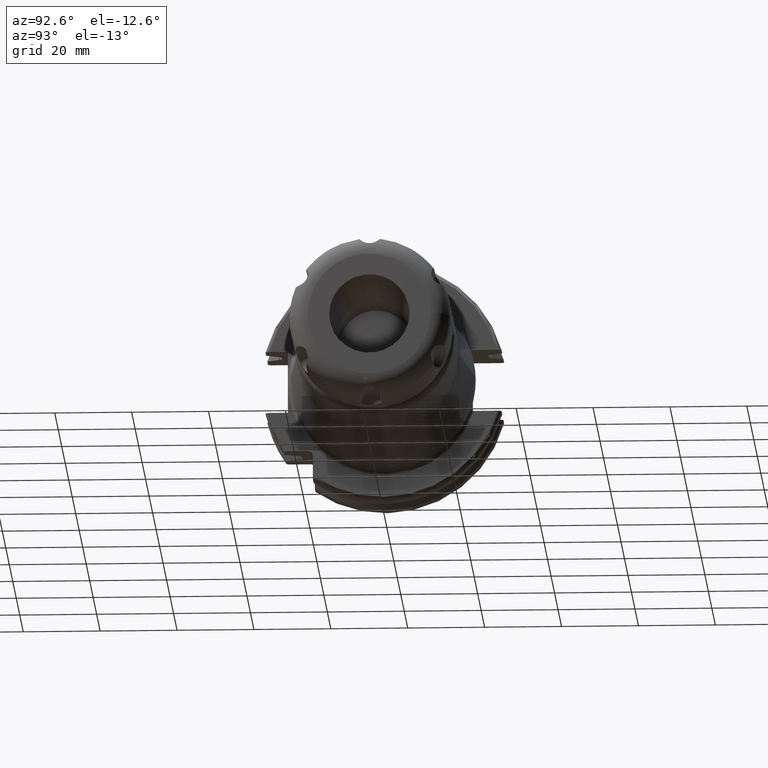
[diagram: clean part render]
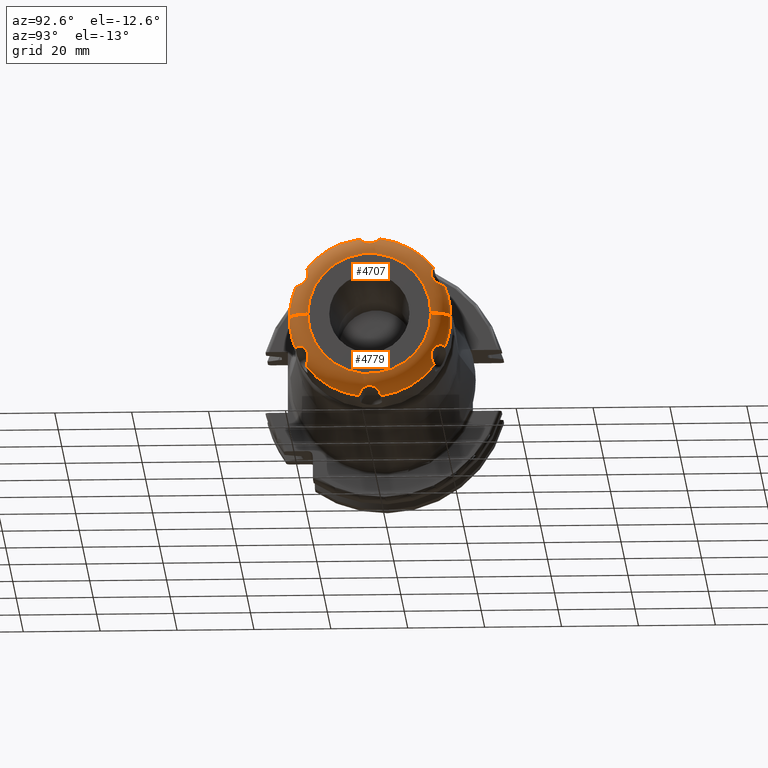
[diagram: same view with one multi-face feature highlighted, each face labeled with its STEP entity id]
A machine part, auxiliary view. The highlighted faces form ONE feature: a constant-radius fillet chain: 2 tangent blend faces with common blend radius 5 mm. The faces share edges in the B-rep.
Their STEP definitions:
[1] entity #4779 (Torus):
#3533=CARTESIAN_POINT('',(1.5E1,1.6E1,0.E0));
#3534=DIRECTION('',(0.E0,0.E0,1.E0));
#3535=DIRECTION('',(1.E0,0.E0,0.E0));
#3536=AXIS2_PLACEMENT_3D('',#3533,#3534,#3535);
#3543=CARTESIAN_POINT('',(1.5E1,-1.6E1,0.E0));
#3544=DIRECTION('',(0.E0,0.E0,-1.E0));
#3545=DIRECTION('',(1.E0,0.E0,0.E0));
#3546=AXIS2_PLACEMENT_3D('',#3543,#3544,#3545);
#3636=CARTESIAN_POINT('',(2.E1,0.E0,0.E0));
#3637=DIRECTION('',(-1.E0,0.E0,0.E0));
#3638=DIRECTION('',(0.E0,1.E0,0.E0));
#3639=AXIS2_PLACEMENT_3D('',#3636,#3637,#3638);
#3641=CARTESIAN_POINT('',(1.5E1,-1.941540806421E1,-8.002620177191E0));
#3642=CARTESIAN_POINT('',(1.542321788724E1,-1.941540806421E1,
-8.002620177191E0));
#3643=CARTESIAN_POINT('',(1.620468152628E1,-1.930999578457E1,
-7.985798708923E0));
#3644=CARTESIAN_POINT('',(1.721216543948E1,-1.891211228604E1,
-7.963908016479E0));
#3645=CARTESIAN_POINT('',(1.796822291460E1,-1.837532731217E1,
-8.023046071665E0));
#3646=CARTESIAN_POINT('',(1.849784635995E1,-1.778663981505E1,
-8.211665502208E0));
#3647=CARTESIAN_POINT('',(1.881976242400E1,-1.724541419782E1,
-8.521814281589E0));
#3648=CARTESIAN_POINT('',(1.899817580767E1,-1.677374639527E1,
-8.940592729759E0));
#3649=CARTESIAN_POINT('',(1.905655290145E1,-1.639010770448E1,
-9.464436485259E0));
#3650=CARTESIAN_POINT('',(1.899770832641E1,-1.612877605656E1,
-1.005882740558E1));
#3651=CARTESIAN_POINT('',(1.881839493085E1,-1.600243396825E1,
-1.067763722815E1));
#3652=CARTESIAN_POINT('',(1.849569164869E1,-1.600523142875E1,
-1.130092212088E1));
#3653=CARTESIAN_POINT('',(1.796584599530E1,-1.613652703256E1,
-1.190397537455E1));
#3654=CARTESIAN_POINT('',(1.720946165293E1,-1.635368824691E1,
-1.239758272599E1));
#3655=CARTESIAN_POINT('',(1.620346445674E1,-1.657102422938E1,
-1.273016788831E1));
#3656=CARTESIAN_POINT('',(1.542276979207E1,-1.663817640239E1,
-1.281292651985E1));
#3657=CARTESIAN_POINT('',(1.5E1,-1.663817640239E1,-1.281292651985E1));
#3667=CARTESIAN_POINT('',(1.5E1,0.E0,0.E0));
#3668=DIRECTION('',(-1.E0,0.E0,0.E0));
#3669=DIRECTION('',(0.E0,-1.322491267532E-1,-9.912165093828E-1));
#3670=AXIS2_PLACEMENT_3D('',#3667,#3668,#3669);
#3680=CARTESIAN_POINT('',(1.5E1,0.E0,0.E0));
#3681=DIRECTION('',(-1.E0,0.E0,0.E0));
#3682=DIRECTION('',(0.E0,7.922941143994E-1,-6.101393580880E-1));
#3683=AXIS2_PLACEMENT_3D('',#3680,#3681,#3682);
#3693=CARTESIAN_POINT('',(1.5E1,0.E0,0.E0));
#3694=DIRECTION('',(-1.E0,0.E0,0.E0));
#3695=DIRECTION('',(0.E0,1.E0,0.E0));
#3696=AXIS2_PLACEMENT_3D('',#3693,#3694,#3695);
#3698=CARTESIAN_POINT('',(1.5E1,0.E0,0.E0));
#3699=DIRECTION('',(-1.E0,0.E0,0.E0));
#3700=DIRECTION('',(0.E0,-9.245432411526E-1,-3.810771512948E-1));
#3701=AXIS2_PLACEMENT_3D('',#3698,#3699,#3700);
#3729=CARTESIAN_POINT('',(1.5E1,-2.777231661817E0,-2.081554669704E1));
#3730=CARTESIAN_POINT('',(1.542283649115E1,-2.777231661817E0,
-2.081554669704E1));
#3731=CARTESIAN_POINT('',(1.620359018029E1,-2.739130560875E0,
-2.071598559478E1));
#3732=CARTESIAN_POINT('',(1.720948819866E1,-2.559738064975E0,
-2.036146256901E1));
#3733=CARTESIAN_POINT('',(1.796549330447E1,-2.241079551557E0,
-1.992686366127E1));
#3734=CARTESIAN_POINT('',(1.849570646141E1,-1.784340492178E0,
-1.951140557946E1));
#3735=CARTESIAN_POINT('',(1.881837504562E1,-1.245775058226E0,
-1.919733776271E1));
#3736=CARTESIAN_POINT('',(1.899740283100E1,-6.480308718251E-1,
-1.899769524169E1));
#3737=CARTESIAN_POINT('',(1.905653967183E1,-3.172219514166E-3,
-1.892648461940E1));
#3738=CARTESIAN_POINT('',(1.899852772525E1,6.421522154987E-1,
-1.899637585718E1));
#3739=CARTESIAN_POINT('',(1.882057927465E1,1.240523942418E0,-1.919498310444E1));
#3740=CARTESIAN_POINT('',(1.849963942235E1,1.779750038083E0,-1.950795009720E1));
#3741=CARTESIAN_POINT('',(1.796950217280E1,2.238903975901E0,-1.992421920690E1));
#3742=CARTESIAN_POINT('',(1.721280415077E1,2.559007455830E0,-2.036011493906E1));
#3743=CARTESIAN_POINT('',(1.620406688496E1,2.739183251575E0,-2.071603611725E1));
#3744=CARTESIAN_POINT('',(1.542290619882E1,2.777231661817E0,-2.081554669704E1));
#3745=CARTESIAN_POINT('',(1.5E1,2.777231661817E0,-2.081554669704E1));
#3773=CARTESIAN_POINT('',(1.5E1,1.663817640239E1,-1.281292651985E1));
#3774=CARTESIAN_POINT('',(1.542264224167E1,1.663817640239E1,-1.281292651985E1));
#3775=CARTESIAN_POINT('',(1.620319397053E1,1.657108286233E1,-1.273026030793E1));
#3776=CARTESIAN_POINT('',(1.720991823069E1,1.635358219019E1,-1.239740090612E1));
#3777=CARTESIAN_POINT('',(1.796611974941E1,1.613644008654E1,-1.190374917720E1));
#3778=CARTESIAN_POINT('',(1.849612557234E1,1.600514716946E1,-1.130031956841E1));
#3779=CARTESIAN_POINT('',(1.881846296949E1,1.600253385446E1,-1.067727437113E1));
#3780=CARTESIAN_POINT('',(1.899746544353E1,1.612857448090E1,-1.005973732472E1));
#3781=CARTESIAN_POINT('',(1.905652444929E1,1.638930186870E1,-9.465900419893E0));
#3782=CARTESIAN_POINT('',(1.899852663991E1,1.677240261127E1,-8.942100552449E0));
#3783=CARTESIAN_POINT('',(1.882064128663E1,1.724345014238E1,-8.523293756400E0));
#3784=CARTESIAN_POINT('',(1.849986546621E1,1.778393464186E1,-8.212813948653E0));
#3785=CARTESIAN_POINT('',(1.796985579910E1,1.837401071235E1,-8.023224485496E0));
#3786=CARTESIAN_POINT('',(1.721319930817E1,1.891170609146E1,-7.963885107570E0));
#3787=CARTESIAN_POINT('',(1.620392342797E1,1.931027083873E1,-7.985819130400E0));
#3788=CARTESIAN_POINT('',(1.542283139190E1,1.941540806421E1,-8.002620177191E0));
#3789=CARTESIAN_POINT('',(1.5E1,1.941540806421E1,-8.002620177191E0));
#4432=CARTESIAN_POINT('',(2.E1,1.6E1,0.E0));
#4433=CARTESIAN_POINT('',(1.5E1,2.1E1,0.E0));
#4434=VERTEX_POINT('',#4432);
#4435=VERTEX_POINT('',#4433);
#4440=CARTESIAN_POINT('',(2.E1,-1.6E1,0.E0));
#4441=CARTESIAN_POINT('',(1.5E1,-2.1E1,0.E0));
#4442=VERTEX_POINT('',#4440);
#4443=VERTEX_POINT('',#4441);
#4444=CARTESIAN_POINT('',(1.5E1,-2.777231661817E0,-2.081554669704E1));
#4446=VERTEX_POINT('',#4444);
#4448=CARTESIAN_POINT('',(1.5E1,2.777231661817E0,-2.081554669704E1));
#4450=VERTEX_POINT('',#4448);
#4452=CARTESIAN_POINT('',(1.5E1,1.663817640239E1,-1.281292651985E1));
#4454=VERTEX_POINT('',#4452);
#4456=CARTESIAN_POINT('',(1.5E1,1.941540806421E1,-8.002620177191E0));
#4458=VERTEX_POINT('',#4456);
#4484=CARTESIAN_POINT('',(1.5E1,-1.941540806421E1,-8.002620177191E0));
#4486=VERTEX_POINT('',#4484);
#4488=CARTESIAN_POINT('',(1.5E1,-1.663817640239E1,-1.281292651985E1));
#4490=VERTEX_POINT('',#4488);
#4754=CARTESIAN_POINT('',(1.5E1,0.E0,0.E0));
#4755=DIRECTION('',(-1.E0,0.E0,0.E0));
#4756=DIRECTION('',(0.E0,1.E0,0.E0));
#4757=AXIS2_PLACEMENT_3D('',#4754,#4755,#4756);
#4758=TOROIDAL_SURFACE('',#4757,1.6E1,5.E0);
#4760=ORIENTED_EDGE('',*,*,#4759,.F.);
#4762=ORIENTED_EDGE('',*,*,#4761,.T.);
#4763=ORIENTED_EDGE('',*,*,#4702,.F.);
#4765=ORIENTED_EDGE('',*,*,#4764,.F.);
#4766=ORIENTED_EDGE('',*,*,#4698,.T.);
#4768=ORIENTED_EDGE('',*,*,#4767,.T.);
#4770=ORIENTED_EDGE('',*,*,#4769,.F.);
#4772=ORIENTED_EDGE('',*,*,#4771,.T.);
#4774=ORIENTED_EDGE('',*,*,#4773,.F.);
#4776=ORIENTED_EDGE('',*,*,#4775,.T.);
#4777=EDGE_LOOP('',(#4760,#4762,#4763,#4765,#4766,#4768,#4770,#4772,#4774,
#4776));
#4778=FACE_OUTER_BOUND('',#4777,.F.);
#4779=ADVANCED_FACE('',(#4778),#4758,.T.);
#3537=CIRCLE('',#3536,5.E0);
#3547=CIRCLE('',#3546,5.E0);
#3640=CIRCLE('',#3639,1.6E1);
#3658=B_SPLINE_CURVE_WITH_KNOTS('',3,(#3641,#3642,#3643,#3644,#3645,#3646,#3647,
#3648,#3649,#3650,#3651,#3652,#3653,#3654,#3655,#3656,#3657),.UNSPECIFIED.,.F.,
.F.,(4,1,1,1,1,1,1,1,1,1,1,1,1,1,4),(0.E0,7.142857142857E-2,1.428571428571E-1,
2.142857142857E-1,2.857142857143E-1,3.571428571429E-1,4.285714285714E-1,5.E-1,
5.714285714286E-1,6.428571428571E-1,7.142857142857E-1,7.857142857143E-1,
8.571428571429E-1,9.285714285714E-1,1.E0),.UNSPECIFIED.);
#3671=CIRCLE('',#3670,2.1E1);
#3684=CIRCLE('',#3683,2.1E1);
#3697=CIRCLE('',#3696,2.1E1);
#3702=CIRCLE('',#3701,2.1E1);
#3746=B_SPLINE_CURVE_WITH_KNOTS('',3,(#3729,#3730,#3731,#3732,#3733,#3734,#3735,
#3736,#3737,#3738,#3739,#3740,#3741,#3742,#3743,#3744,#3745),.UNSPECIFIED.,.F.,
.F.,(4,1,1,1,1,1,1,1,1,1,1,1,1,1,4),(0.E0,7.142857142857E-2,1.428571428571E-1,
2.142857142857E-1,2.857142857143E-1,3.571428571429E-1,4.285714285714E-1,5.E-1,
5.714285714286E-1,6.428571428571E-1,7.142857142857E-1,7.857142857143E-1,
8.571428571429E-1,9.285714285714E-1,1.E0),.UNSPECIFIED.);
#3790=B_SPLINE_CURVE_WITH_KNOTS('',3,(#3773,#3774,#3775,#3776,#3777,#3778,#3779,
#3780,#3781,#3782,#3783,#3784,#3785,#3786,#3787,#3788,#3789),.UNSPECIFIED.,.F.,
.F.,(4,1,1,1,1,1,1,1,1,1,1,1,1,1,4),(0.E0,7.142857142857E-2,1.428571428571E-1,
2.142857142857E-1,2.857142857143E-1,3.571428571429E-1,4.285714285714E-1,5.E-1,
5.714285714286E-1,6.428571428571E-1,7.142857142857E-1,7.857142857143E-1,
8.571428571429E-1,9.285714285714E-1,1.E0),.UNSPECIFIED.);
#4698=EDGE_CURVE('',#4434,#4435,#3537,.T.);
#4702=EDGE_CURVE('',#4442,#4443,#3547,.T.);
#4759=EDGE_CURVE('',#4486,#4490,#3658,.T.);
#4761=EDGE_CURVE('',#4486,#4443,#3702,.T.);
#4764=EDGE_CURVE('',#4434,#4442,#3640,.T.);
#4767=EDGE_CURVE('',#4435,#4458,#3697,.T.);
#4769=EDGE_CURVE('',#4454,#4458,#3790,.T.);
#4771=EDGE_CURVE('',#4454,#4450,#3684,.T.);
#4773=EDGE_CURVE('',#4446,#4450,#3746,.T.);
#4775=EDGE_CURVE('',#4446,#4490,#3671,.T.);
[2] entity #4707 (Torus):
#3471=CARTESIAN_POINT('',(1.5E1,0.E0,0.E0));
#3472=DIRECTION('',(1.E0,0.E0,0.E0));
#3473=DIRECTION('',(0.E0,-9.245432411526E-1,3.810771512948E-1));
#3474=AXIS2_PLACEMENT_3D('',#3471,#3472,#3473);
#3484=CARTESIAN_POINT('',(1.5E1,0.E0,0.E0));
#3485=DIRECTION('',(1.E0,0.E0,0.E0));
#3486=DIRECTION('',(0.E0,1.E0,0.E0));
#3487=AXIS2_PLACEMENT_3D('',#3484,#3485,#3486);
#3497=CARTESIAN_POINT('',(1.5E1,0.E0,0.E0));
#3498=DIRECTION('',(1.E0,0.E0,0.E0));
#3499=DIRECTION('',(0.E0,7.922941143994E-1,6.101393580880E-1));
#3500=AXIS2_PLACEMENT_3D('',#3497,#3498,#3499);
#3510=CARTESIAN_POINT('',(1.5E1,0.E0,0.E0));
#3511=DIRECTION('',(1.E0,0.E0,0.E0));
#3512=DIRECTION('',(0.E0,-1.322491267532E-1,9.912165093828E-1));
#3513=AXIS2_PLACEMENT_3D('',#3510,#3511,#3512);
#3515=CARTESIAN_POINT('',(1.5E1,-1.663817640239E1,1.281292651985E1));
#3516=CARTESIAN_POINT('',(1.542260382297E1,-1.663817640239E1,1.281292651985E1));
#3517=CARTESIAN_POINT('',(1.620313306297E1,-1.657110513877E1,1.273029712288E1));
#3518=CARTESIAN_POINT('',(1.721032189955E1,-1.635348489011E1,1.239724443733E1));
#3519=CARTESIAN_POINT('',(1.796646120495E1,-1.613633818709E1,1.190344607829E1));
#3520=CARTESIAN_POINT('',(1.849631223424E1,-1.600512195680E1,1.130002378843E1));
#3521=CARTESIAN_POINT('',(1.881851642939E1,-1.600255867405E1,1.067711197803E1));
#3522=CARTESIAN_POINT('',(1.899747025112E1,-1.612859999176E1,1.005968142353E1));
#3523=CARTESIAN_POINT('',(1.905651691421E1,-1.638928062233E1,9.465955173356E0));
#3524=CARTESIAN_POINT('',(1.899855168311E1,-1.677229127502E1,8.942233977049E0));
#3525=CARTESIAN_POINT('',(1.882073881144E1,-1.724322851584E1,8.523464182632E0));
#3526=CARTESIAN_POINT('',(1.850012258001E1,-1.778357127446E1,8.212980108285E0));
#3527=CARTESIAN_POINT('',(1.797026415788E1,-1.837364039603E1,8.023297432454E0));
#3528=CARTESIAN_POINT('',(1.721365438664E1,-1.891149901697E1,7.963878214614E0));
#3529=CARTESIAN_POINT('',(1.620385583651E1,-1.931031893837E1,7.985820134037E0));
#3530=CARTESIAN_POINT('',(1.542278776310E1,-1.941540806421E1,8.002620177191E0));
#3531=CARTESIAN_POINT('',(1.5E1,-1.941540806421E1,8.002620177191E0));
#3533=CARTESIAN_POINT('',(1.5E1,1.6E1,0.E0));
#3534=DIRECTION('',(0.E0,0.E0,1.E0));
#3535=DIRECTION('',(1.E0,0.E0,0.E0));
#3536=AXIS2_PLACEMENT_3D('',#3533,#3534,#3535);
#3538=CARTESIAN_POINT('',(2.E1,0.E0,0.E0));
#3539=DIRECTION('',(1.E0,0.E0,0.E0));
#3540=DIRECTION('',(0.E0,1.E0,0.E0));
#3541=AXIS2_PLACEMENT_3D('',#3538,#3539,#3540);
#3543=CARTESIAN_POINT('',(1.5E1,-1.6E1,0.E0));
#3544=DIRECTION('',(0.E0,0.E0,-1.E0));
#3545=DIRECTION('',(1.E0,0.E0,0.E0));
#3546=AXIS2_PLACEMENT_3D('',#3543,#3544,#3545);
#3548=CARTESIAN_POINT('',(1.5E1,2.777231661817E0,2.081554669704E1));
#3549=CARTESIAN_POINT('',(1.542279308740E1,2.777231661817E0,2.081554669704E1));
#3550=CARTESIAN_POINT('',(1.620351537859E1,2.739151992344E0,2.071602539700E1));
#3551=CARTESIAN_POINT('',(1.720986380111E1,2.559657831356E0,2.036131206333E1));
#3552=CARTESIAN_POINT('',(1.796580358001E1,2.240885672754E0,1.992664467313E1));
#3553=CARTESIAN_POINT('',(1.849586568209E1,1.784128736772E0,1.951125993445E1));
#3554=CARTESIAN_POINT('',(1.881840851993E1,1.245666636931E0,1.919729903626E1));
#3555=CARTESIAN_POINT('',(1.899739555758E1,6.480299346741E-1,1.899770356738E1));
#3556=CARTESIAN_POINT('',(1.905653147682E1,3.304264254549E-3,1.892649438425E1));
#3557=CARTESIAN_POINT('',(1.899856708399E1,-6.419000966049E-1,
1.899632929293E1));
#3558=CARTESIAN_POINT('',(1.882071227496E1,-1.240178294962E0,1.919483815452E1));
#3559=CARTESIAN_POINT('',(1.849996277309E1,-1.779348233488E0,1.950766056482E1));
#3560=CARTESIAN_POINT('',(1.796996918071E1,-2.238625056850E0,1.992389677228E1));
#3561=CARTESIAN_POINT('',(1.721330276995E1,-2.558901043962E0,2.035991541872E1));
#3562=CARTESIAN_POINT('',(1.620399013201E1,-2.739208883523E0,2.071608289612E1));
#3563=CARTESIAN_POINT('',(1.542285655785E1,-2.777231661817E0,2.081554669704E1));
#3564=CARTESIAN_POINT('',(1.5E1,-2.777231661817E0,2.081554669704E1));
#3592=CARTESIAN_POINT('',(1.5E1,1.941540806421E1,8.002620177191E0));
#3593=CARTESIAN_POINT('',(1.542325707458E1,1.941540806421E1,8.002620177191E0));
#3594=CARTESIAN_POINT('',(1.620474516175E1,1.930995255007E1,7.985797741421E0));
#3595=CARTESIAN_POINT('',(1.721177171600E1,1.891229200737E1,7.963913880881E0));
#3596=CARTESIAN_POINT('',(1.796789380952E1,1.837563068952E1,8.022984319062E0));
#3597=CARTESIAN_POINT('',(1.849767176471E1,1.778689293698E1,8.211545712075E0));
#3598=CARTESIAN_POINT('',(1.881971771201E1,1.724552496120E1,8.521723520229E0));
#3599=CARTESIAN_POINT('',(1.899817641664E1,1.677376327535E1,8.940562486847E0));
#3600=CARTESIAN_POINT('',(1.905656064326E1,1.639005406368E1,9.464510973236E0));
#3601=CARTESIAN_POINT('',(1.899767653405E1,1.612870488188E1,1.005902588282E1));
#3602=CARTESIAN_POINT('',(1.881828068856E1,1.600239281851E1,1.067795806539E1));
#3603=CARTESIAN_POINT('',(1.849540147324E1,1.600527619310E1,1.130136375713E1));
#3604=CARTESIAN_POINT('',(1.796542019372E1,1.613665472503E1,1.190434241237E1));
#3605=CARTESIAN_POINT('',(1.720900837144E1,1.635379583276E1,1.239775376259E1));
#3606=CARTESIAN_POINT('',(1.620357851316E1,1.657099171761E1,1.273011648800E1));
#3607=CARTESIAN_POINT('',(1.542283427679E1,1.663817640239E1,1.281292651985E1));
#3608=CARTESIAN_POINT('',(1.5E1,1.663817640239E1,1.281292651985E1));
#4432=CARTESIAN_POINT('',(2.E1,1.6E1,0.E0));
#4433=CARTESIAN_POINT('',(1.5E1,2.1E1,0.E0));
#4434=VERTEX_POINT('',#4432);
#4435=VERTEX_POINT('',#4433);
#4440=CARTESIAN_POINT('',(2.E1,-1.6E1,0.E0));
#4441=CARTESIAN_POINT('',(1.5E1,-2.1E1,0.E0));
#4442=VERTEX_POINT('',#4440);
#4443=VERTEX_POINT('',#4441);
#4460=CARTESIAN_POINT('',(1.5E1,1.941540806421E1,8.002620177191E0));
#4462=VERTEX_POINT('',#4460);
#4464=CARTESIAN_POINT('',(1.5E1,1.663817640239E1,1.281292651985E1));
#4466=VERTEX_POINT('',#4464);
#4468=CARTESIAN_POINT('',(1.5E1,2.777231661817E0,2.081554669704E1));
#4470=VERTEX_POINT('',#4468);
#4472=CARTESIAN_POINT('',(1.5E1,-2.777231661817E0,2.081554669704E1));
#4474=VERTEX_POINT('',#4472);
#4476=CARTESIAN_POINT('',(1.5E1,-1.663817640239E1,1.281292651985E1));
#4478=VERTEX_POINT('',#4476);
#4480=CARTESIAN_POINT('',(1.5E1,-1.941540806421E1,8.002620177191E0));
#4482=VERTEX_POINT('',#4480);
#4685=CARTESIAN_POINT('',(1.5E1,0.E0,0.E0));
#4686=DIRECTION('',(-1.E0,0.E0,0.E0));
#4687=DIRECTION('',(0.E0,1.E0,0.E0));
#4688=AXIS2_PLACEMENT_3D('',#4685,#4686,#4687);
#4689=TOROIDAL_SURFACE('',#4688,1.6E1,5.E0);
#4690=ORIENTED_EDGE('',*,*,#4676,.F.);
#4691=ORIENTED_EDGE('',*,*,#4666,.F.);
#4693=ORIENTED_EDGE('',*,*,#4692,.F.);
#4694=ORIENTED_EDGE('',*,*,#4658,.F.);
#4696=ORIENTED_EDGE('',*,*,#4695,.F.);
#4697=ORIENTED_EDGE('',*,*,#4650,.F.);
#4699=ORIENTED_EDGE('',*,*,#4698,.F.);
#4701=ORIENTED_EDGE('',*,*,#4700,.T.);
#4703=ORIENTED_EDGE('',*,*,#4702,.T.);
#4704=ORIENTED_EDGE('',*,*,#4643,.F.);
#4705=EDGE_LOOP('',(#4690,#4691,#4693,#4694,#4696,#4697,#4699,#4701,#4703,
#4704));
#4706=FACE_OUTER_BOUND('',#4705,.F.);
#4707=ADVANCED_FACE('',(#4706),#4689,.T.);
#3475=CIRCLE('',#3474,2.1E1);
#3488=CIRCLE('',#3487,2.1E1);
#3501=CIRCLE('',#3500,2.1E1);
#3514=CIRCLE('',#3513,2.1E1);
#3532=B_SPLINE_CURVE_WITH_KNOTS('',3,(#3515,#3516,#3517,#3518,#3519,#3520,#3521,
#3522,#3523,#3524,#3525,#3526,#3527,#3528,#3529,#3530,#3531),.UNSPECIFIED.,.F.,
.F.,(4,1,1,1,1,1,1,1,1,1,1,1,1,1,4),(0.E0,7.142857142857E-2,1.428571428571E-1,
2.142857142857E-1,2.857142857143E-1,3.571428571429E-1,4.285714285714E-1,5.E-1,
5.714285714286E-1,6.428571428571E-1,7.142857142857E-1,7.857142857143E-1,
8.571428571429E-1,9.285714285714E-1,1.E0),.UNSPECIFIED.);
#3537=CIRCLE('',#3536,5.E0);
#3542=CIRCLE('',#3541,1.6E1);
#3547=CIRCLE('',#3546,5.E0);
#3565=B_SPLINE_CURVE_WITH_KNOTS('',3,(#3548,#3549,#3550,#3551,#3552,#3553,#3554,
#3555,#3556,#3557,#3558,#3559,#3560,#3561,#3562,#3563,#3564),.UNSPECIFIED.,.F.,
.F.,(4,1,1,1,1,1,1,1,1,1,1,1,1,1,4),(0.E0,7.142857142857E-2,1.428571428571E-1,
2.142857142857E-1,2.857142857143E-1,3.571428571429E-1,4.285714285714E-1,5.E-1,
5.714285714286E-1,6.428571428571E-1,7.142857142857E-1,7.857142857143E-1,
8.571428571429E-1,9.285714285714E-1,1.E0),.UNSPECIFIED.);
#3609=B_SPLINE_CURVE_WITH_KNOTS('',3,(#3592,#3593,#3594,#3595,#3596,#3597,#3598,
#3599,#3600,#3601,#3602,#3603,#3604,#3605,#3606,#3607,#3608),.UNSPECIFIED.,.F.,
.F.,(4,1,1,1,1,1,1,1,1,1,1,1,1,1,4),(0.E0,7.142857142857E-2,1.428571428571E-1,
2.142857142857E-1,2.857142857143E-1,3.571428571429E-1,4.285714285714E-1,5.E-1,
5.714285714286E-1,6.428571428571E-1,7.142857142857E-1,7.857142857143E-1,
8.571428571429E-1,9.285714285714E-1,1.E0),.UNSPECIFIED.);
#4643=EDGE_CURVE('',#4482,#4443,#3475,.T.);
#4650=EDGE_CURVE('',#4435,#4462,#3488,.T.);
#4658=EDGE_CURVE('',#4466,#4470,#3501,.T.);
#4666=EDGE_CURVE('',#4474,#4478,#3514,.T.);
#4676=EDGE_CURVE('',#4478,#4482,#3532,.T.);
#4692=EDGE_CURVE('',#4470,#4474,#3565,.T.);
#4695=EDGE_CURVE('',#4462,#4466,#3609,.T.);
#4698=EDGE_CURVE('',#4434,#4435,#3537,.T.);
#4700=EDGE_CURVE('',#4434,#4442,#3542,.T.);
#4702=EDGE_CURVE('',#4442,#4443,#3547,.T.);